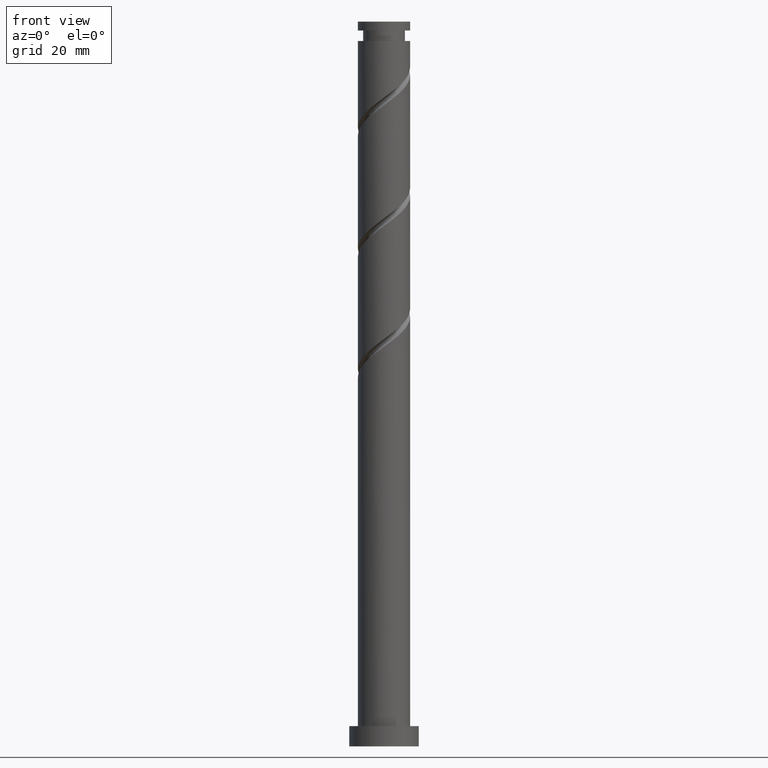
[diagram: clean part render]
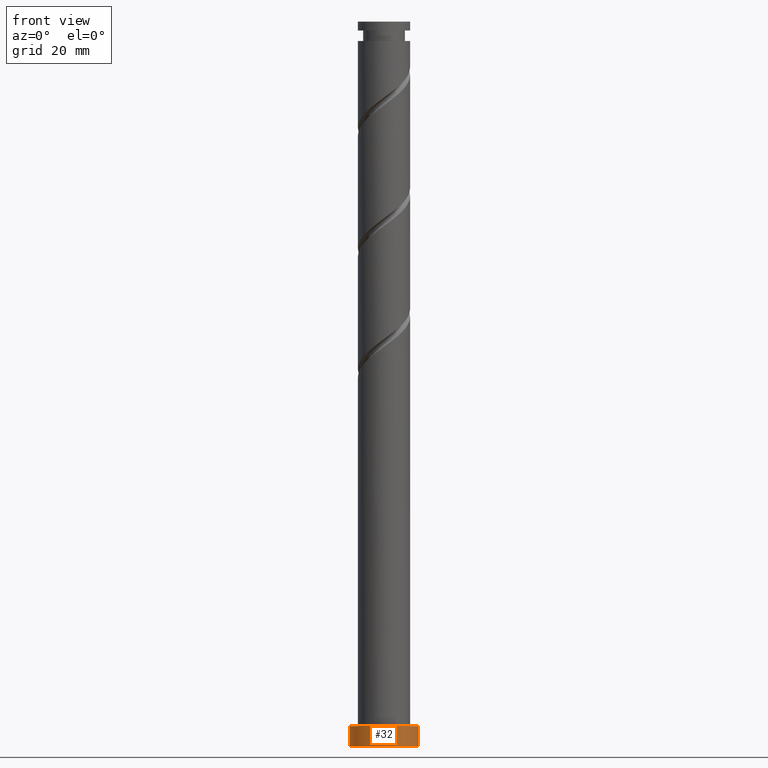
[diagram: same view with one face highlighted and labeled with its STEP entity id]
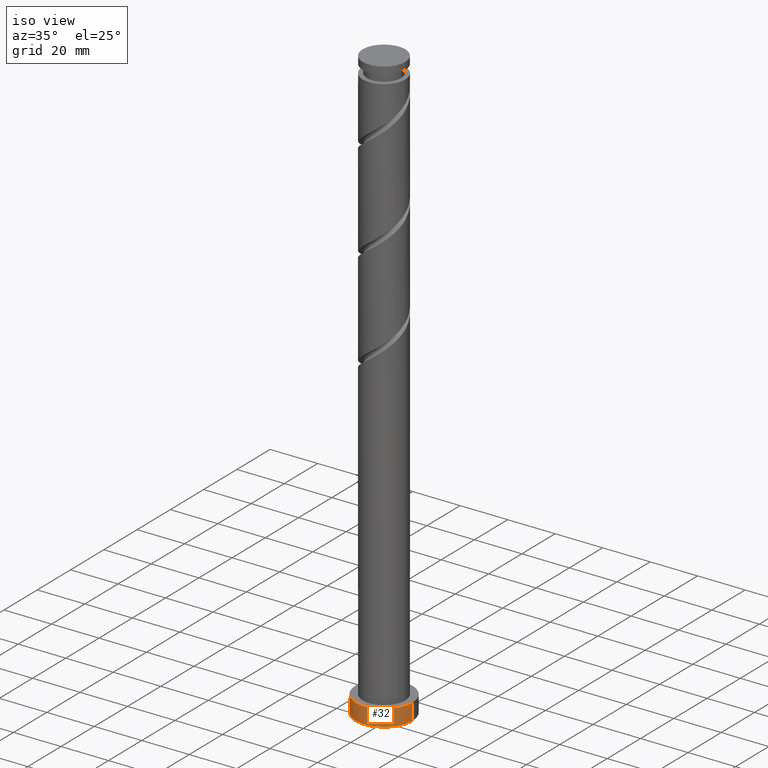
[diagram: same view with one face highlighted and labeled with its STEP entity id]
A machine part, front view. The second image highlights one B-rep face of the part: STEP entity #32.
A second angle (iso view) of the same face is appended — the face is thin or edge-on in the first view.
In plain terms, the highlighted cylindrical surface (edge-blend (fillet) strip) has radius 12 mm, axis along (-0, -0, -1).
Its self-contained STEP definition (entity closure, byte-faithful):
#11 = DIRECTION ( 'NONE',  ( -0.000000000000000000, -0.000000000000000000, -1.000000000000000000 ) ) ;
#32 = ADVANCED_FACE ( 'NONE', ( #742 ), #981, .T. ) ;
#111 = CIRCLE ( 'NONE', #1178, 12.00000000000000178 ) ;
#124 = CARTESIAN_POINT ( 'NONE',  ( -12.00000000000000178, 0.000000000000000000, 7.000000000000000000 ) ) ;
#199 = EDGE_CURVE ( 'NONE', #749, #1632, #111, .T. ) ;
#208 = LINE ( 'NONE', #1343, #1523 ) ;
#317 = EDGE_LOOP ( 'NONE', ( #1411, #511, #748, #1827 ) ) ;
#366 = VERTEX_POINT ( 'NONE', #473 ) ;
#378 = DIRECTION ( 'NONE',  ( -0.000000000000000000, -0.000000000000000000, -1.000000000000000000 ) ) ;
#413 = CARTESIAN_POINT ( 'NONE',  ( 0.000000000000000000, 0.000000000000000000, 7.000000000000000000 ) ) ;
#451 = DIRECTION ( 'NONE',  ( 0.000000000000000000, 0.000000000000000000, 1.000000000000000000 ) ) ;
#458 = DIRECTION ( 'NONE',  ( 1.000000000000000000, 0.000000000000000000, 0.000000000000000000 ) ) ;
#473 = CARTESIAN_POINT ( 'NONE',  ( -12.00000000000000178, 0.000000000000000000, 0.000000000000000000 ) ) ;
#493 = EDGE_CURVE ( 'NONE', #749, #366, #208, .T. ) ;
#511 = ORIENTED_EDGE ( 'NONE', *, *, #199, .F. ) ;
#551 = CARTESIAN_POINT ( 'NONE',  ( 0.000000000000000000, 0.000000000000000000, 7.000000000000000000 ) ) ;
#583 = DIRECTION ( 'NONE',  ( 0.000000000000000000, 0.000000000000000000, 1.000000000000000000 ) ) ;
#639 = VERTEX_POINT ( 'NONE', #1689 ) ;
#714 = CARTESIAN_POINT ( 'NONE',  ( 0.000000000000000000, 0.000000000000000000, 0.000000000000000000 ) ) ;
#742 = FACE_OUTER_BOUND ( 'NONE', #317, .T. ) ;
#748 = ORIENTED_EDGE ( 'NONE', *, *, #493, .T. ) ;
#749 = VERTEX_POINT ( 'NONE', #124 ) ;
#837 = EDGE_CURVE ( 'NONE', #366, #639, #1669, .T. ) ;
#844 = AXIS2_PLACEMENT_3D ( 'NONE', #551, #1010, #1734 ) ;
#864 = CARTESIAN_POINT ( 'NONE',  ( 12.00000000000000178, 1.469576158976824144E-15, 7.000000000000000000 ) ) ;
#981 = CYLINDRICAL_SURFACE ( 'NONE', #844, 12.00000000000000178 ) ;
#1010 = DIRECTION ( 'NONE',  ( -0.000000000000000000, -0.000000000000000000, -1.000000000000000000 ) ) ;
#1073 = VECTOR ( 'NONE', #11, 1000.000000000000000 ) ;
#1105 = EDGE_CURVE ( 'NONE', #1632, #639, #1137, .T. ) ;
#1137 = LINE ( 'NONE', #864, #1073 ) ;
#1178 = AXIS2_PLACEMENT_3D ( 'NONE', #413, #583, #1678 ) ;
#1343 = CARTESIAN_POINT ( 'NONE',  ( -12.00000000000000178, 0.000000000000000000, 7.000000000000000000 ) ) ;
#1411 = ORIENTED_EDGE ( 'NONE', *, *, #1105, .F. ) ;
#1448 = AXIS2_PLACEMENT_3D ( 'NONE', #714, #451, #458 ) ;
#1509 = CARTESIAN_POINT ( 'NONE',  ( 12.00000000000000178, 1.469576158976824144E-15, 7.000000000000000000 ) ) ;
#1523 = VECTOR ( 'NONE', #378, 1000.000000000000000 ) ;
#1632 = VERTEX_POINT ( 'NONE', #1509 ) ;
#1669 = CIRCLE ( 'NONE', #1448, 12.00000000000000178 ) ;
#1678 = DIRECTION ( 'NONE',  ( 1.000000000000000000, 0.000000000000000000, 0.000000000000000000 ) ) ;
#1689 = CARTESIAN_POINT ( 'NONE',  ( 12.00000000000000178, 1.469576158976824144E-15, 0.000000000000000000 ) ) ;
#1734 = DIRECTION ( 'NONE',  ( -1.000000000000000000, 0.000000000000000000, 0.000000000000000000 ) ) ;
#1827 = ORIENTED_EDGE ( 'NONE', *, *, #837, .T. ) ;